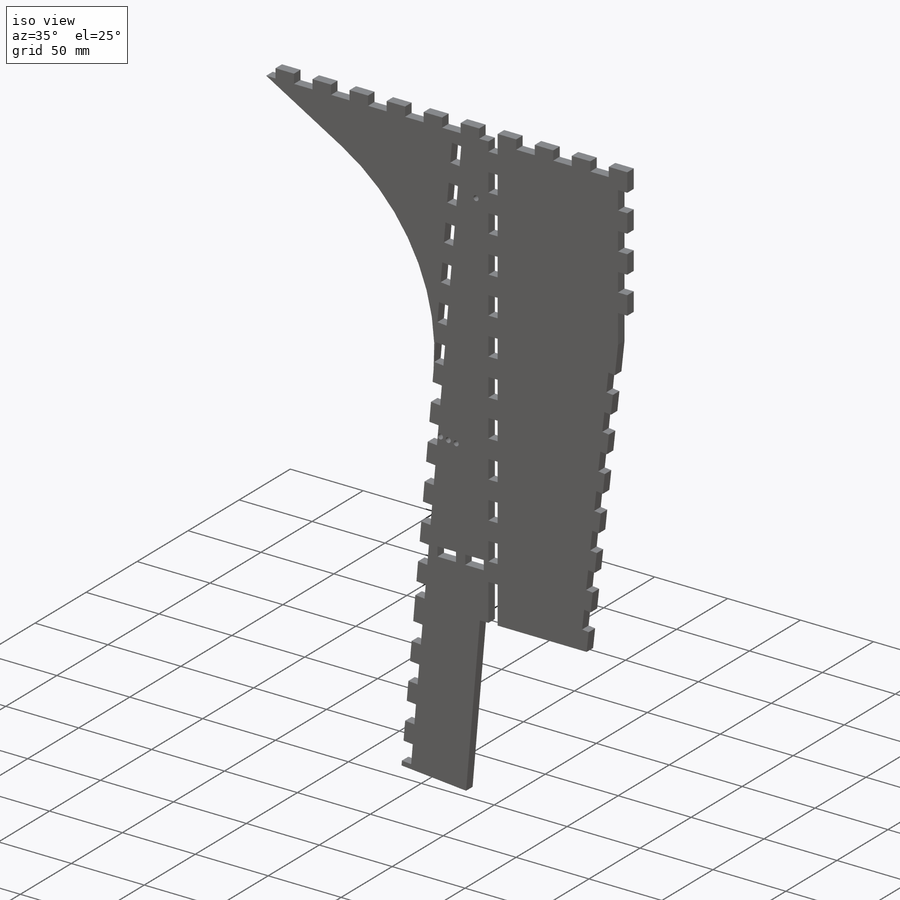
[diagram: iso view]
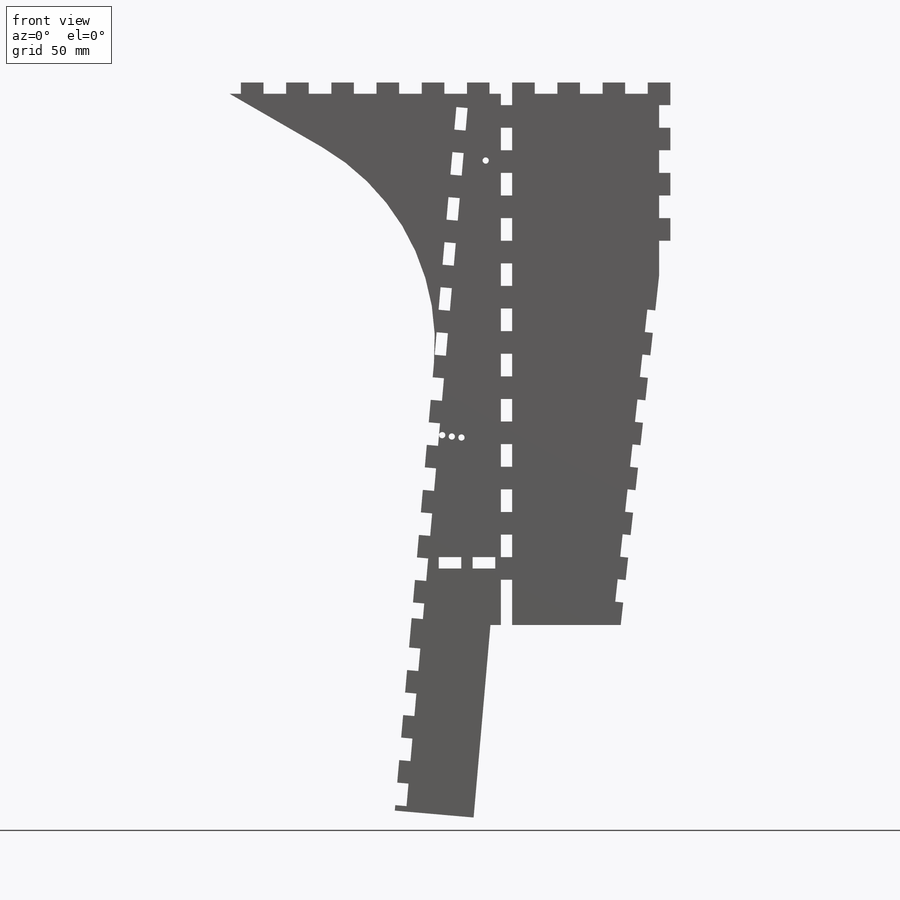
[diagram: front view]
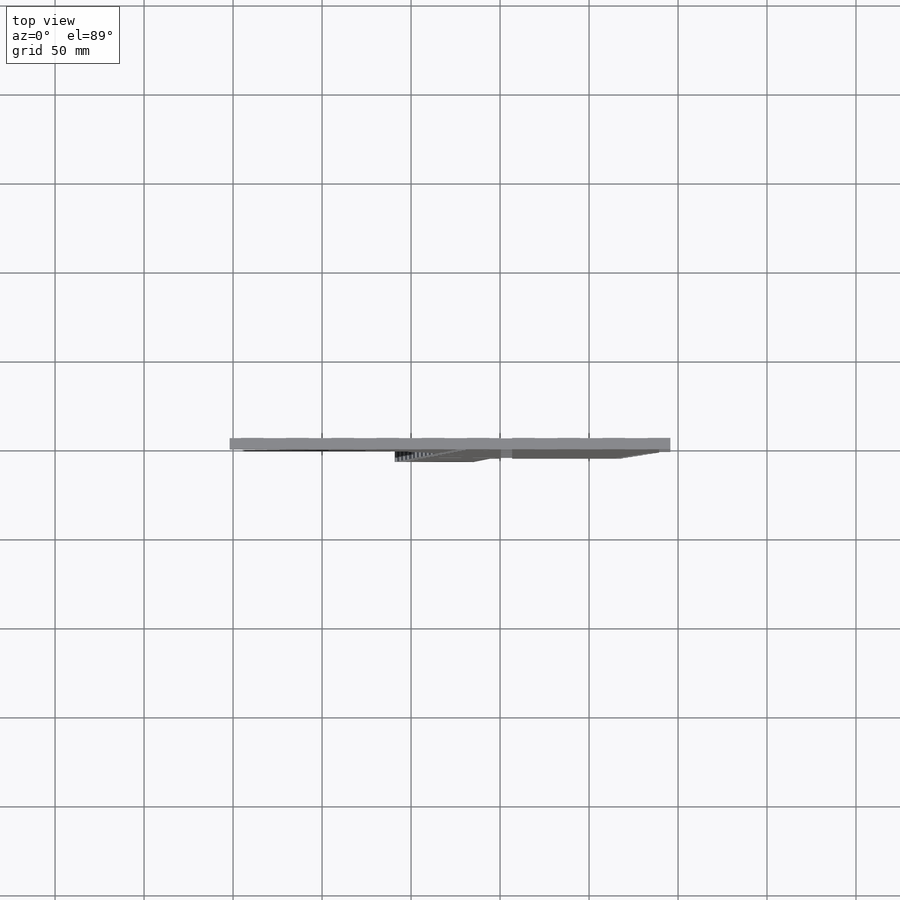
[diagram: top view]
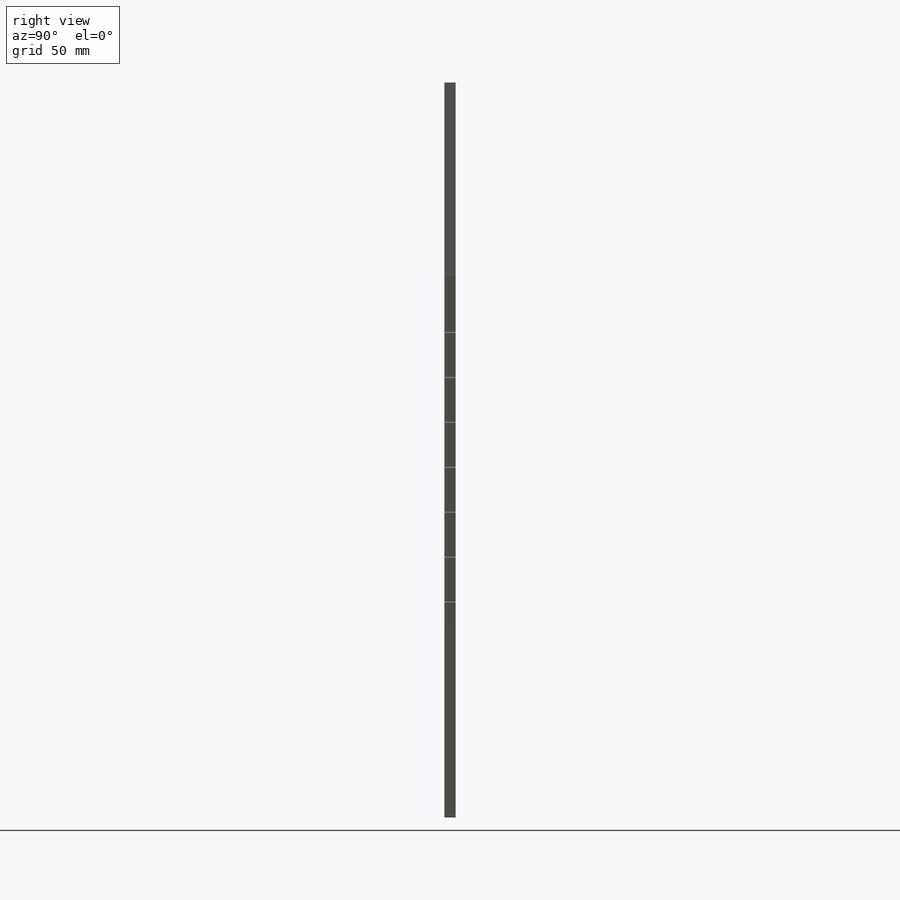
[diagram: right view]
SOLIDWORKS PART (.sldprt)
format: sldprt  version: not decoded by parser v0  size: 778,240 bytes
history: native  units: mm
features: sketch x14, cut_extrude x9, pattern_linear x6, extrude x3, material x1, fillet x1 (+13 scaffold rows collapsed)
feature tree (47):
  scaffold x13  (default folders/planes/origin — collapsed)
  material  "Pine"
  sketch  "Sketch1"  dims[c1.D10=3.5mm c1.D1=304.8mm c1.D2=88.9mm c1.D3=254.0mm c1.D4=~289.594548mm c2.D4=85.0deg c2.D5=44.45mm c2.D2=101.6mm c2.D3=38.1mm c2.D6=127.0mm c2.D7=50.8mm c2.D8=6.35mm c2.D9=~91.446226mm c3.D9=30.0deg c3.D2=101.6mm c3.D5=43.942mm c3.D11=22.225mm c4.D2=101.6mm c4.D5=19.05mm c4.D11=24.892mm c4.D12=19.05mm c4.D13=~23.532762mm c5.D13=5.0deg c5.D14=156.21mm c5.D16=1.0deg c5.D6=209.55mm c5.D15=5.0]
  extrude  "Boss-Extrude1"  Depth=6.35mm
  sketch  "Sketch2"  dims[c1.D1=203.2mm c1.D2=22.225mm c1.D3=95.25mm c2.D1=203.2mm c3.D1=~97.817475deg c4.D1=254.0mm]
  cut_extrude  "Cut-Extrude1"  [1 undecoded]
  sketch  "Sketch5"  dims[c1.D1=12.7mm c1.D2=12.7mm c1.D3=6.35mm c2.D2=12.7mm]
  cut_extrude  "Cut-Extrude3"  [1 undecoded]
  fillet  "Fillet1"  Radius=127mm
  pattern_linear  "LPattern1"  Count1=10 Count2=1 Spacing1=25.4mm Spacing2=2.54mm
  sketch  "Sketch6"  dims[D1=12.7mm]
  cut_extrude  "Cut-Extrude4"  [1 undecoded]
  sketch  "3DSketch1"  dims[c1.D1=6.35mm c1.D2=12.7mm c1.D4=12.7mm c1.D3=12.7mm c2.D2=12.7mm]
  sketch  "Sketch8"  dims[c1.D1=12.7mm c1.D2=12.7mm c1.D3=6.35mm c2.D1=12.7mm]
  cut_extrude  "Cut-Extrude5"  [1 undecoded]
  pattern_linear  "LPattern3"  Count1=7 Count2=1 Spacing1=25.4mm Spacing2=2.54mm
  sketch  "Sketch10"
  extrude  "Boss-Extrude2"  [1 undecoded]
  pattern_linear  "LPattern4"  Count1=4 Count2=1 Spacing1=25.4mm Spacing2=2.54mm
  sketch  "Sketch11"
  cut_extrude  "Cut-Extrude7"  [1 undecoded]
  sketch  "Sketch12"  dims[c1.D1=88.9mm c1.D2=6.35mm c1.D3=12.7mm c1.D4=12.7mm c2.D1=88.9mm c2.D4=12.7mm]
  cut_extrude  "Cut-Extrude8"  [1 undecoded]
  pattern_linear  "LPattern5"  Count1=12 Count2=1 Spacing1=25.4mm Spacing2=2.54mm
  sketch  "Sketch13"  dims[D1=12.7mm D2=12.7mm D3=6.35mm]
  cut_extrude  "Cut-Extrude9"  [1 undecoded]
  pattern_linear  "LPattern6"  Count1=12 Count2=1 Spacing1=25.4mm Spacing2=2.54mm
  sketch  "Sketch15"  dims[c1.D1=12.7mm c1.D2=6.35mm c1.D3=6.35mm c1.D4=31.75mm c2.D1=3.175mm]
  cut_extrude  "Cut-Extrude10"  [1 undecoded]
  sketch  "Sketch16"
  cut_extrude  "Cut-Extrude11"  [1 undecoded]
  sketch  "Sketch20"  dims[D1=368.3mm D2=44.45mm]
  extrude  "Boss-Extrude4"  Depth=6.35mm
  pattern_linear  "LPattern7"  Count1=5 Count2=1 Spacing1=25.4mm Spacing2=2.54mm
  sketch  "Sketch22"
decode coverage: 19 of 33 modeling features carry decoded parameters
note: ~ marks probable driven/reference dimensions
note: 10 parameter values undecoded
summary: no parameter record found for 10 features
note: suppression state not decoded; provenance and decode notes live in map.json
